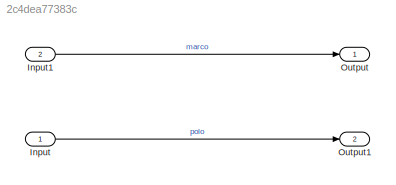
MODEL slx_2c4dea77383c
KIND model
CONFIG AbsTol = auto
CONFIG EnableMultiTasking = off
CONFIG FixedStep = auto
CONFIG MaxStep = auto
CONFIG MinStep = auto
CONFIG RelTol = 1e-3
CONFIG SampleTimeConstraint = Unconstrained
CONFIG SolverName = VariableStepAuto
CONFIG StartTime = 0.0
CONFIG StopTime = 10.0
BLOCK [Inport] Input
  IconDisplay = Signal name
BLOCK [Inport] Input1
  IconDisplay = Signal name
  Port = 2
BLOCK [Outport] Output
  IconDisplay = Signal name
  SignalName = marco
BLOCK [Outport] Output1
  IconDisplay = Signal name
  Port = 2
  SignalName = polo
LINE Input1:1 -> Output:1
LINE Input:1 -> Output1:1
